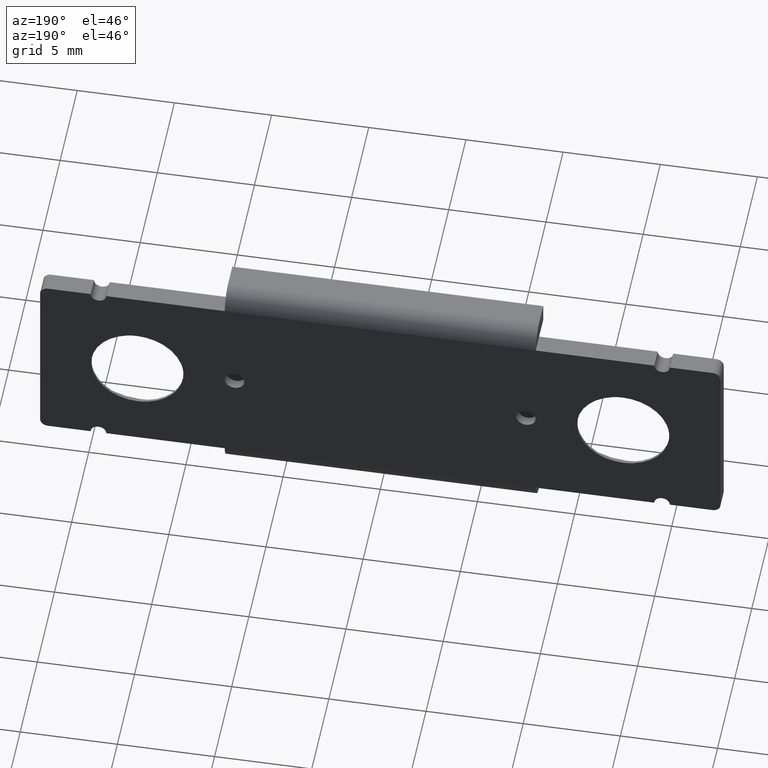
[diagram: clean part render]
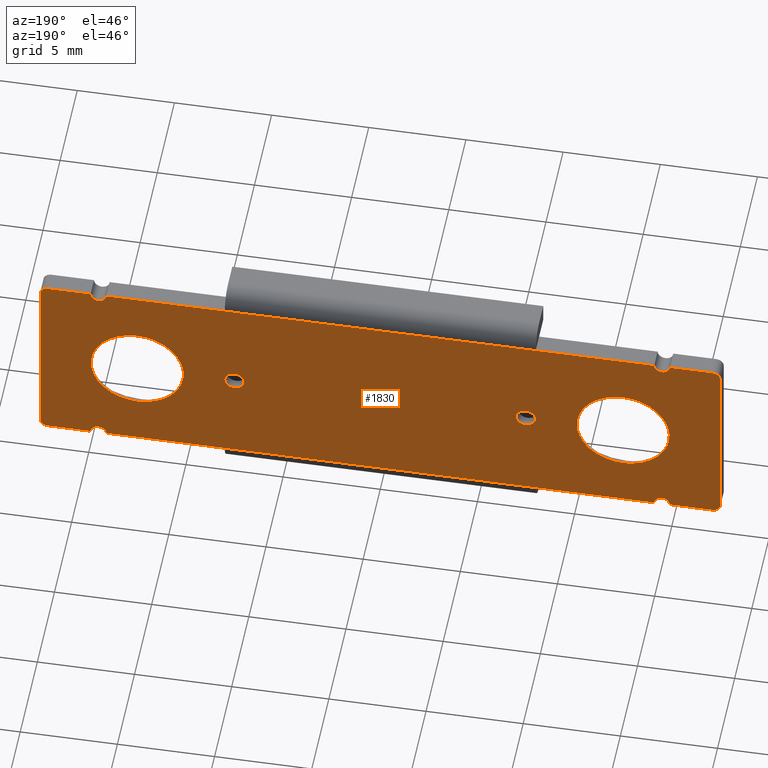
[diagram: same view with one face highlighted and labeled with its STEP entity id]
A machine part, auxiliary view. The second image highlights one B-rep face of the part: STEP entity #1830.
In plain terms, the highlighted face is a freeform B-spline surface patch.
Its self-contained STEP definition (entity closure, byte-faithful):
#311=CARTESIAN_POINT('',(14.870569646250910,-6.740051E-015,-0.144990281413068));
#312=VERTEX_POINT('',#311);
#352=CARTESIAN_POINT('',(10.129429353749209,-6.740051E-015,0.144990281413068));
#353=VERTEX_POINT('',#352);
#359=CARTESIAN_POINT('',(12.499999500000060,-6.744605E-015,2.375000000000000));
#360=VERTEX_POINT('',#359);
#361=CARTESIAN_POINT('',(12.499999500000060,-6.744605E-015,2.375000000000000));
#362=CARTESIAN_POINT('',(10.265822591115827,-6.744605E-015,2.375000000000000));
#363=CARTESIAN_POINT('',(10.129429353749215,-6.744605E-015,0.144990281413068));
#371=(BOUNDED_CURVE()B_SPLINE_CURVE(2,(#361,#362,#363),.UNSPECIFIED.,.F.,.U.)B_SPLINE_CURVE_WITH_KNOTS((3,3),(0.500000000000000,0.739332962240674),.UNSPECIFIED.)CURVE()GEOMETRIC_REPRESENTATION_ITEM()RATIONAL_B_SPLINE_CURVE((1.0,0.719603993284682,0.976072041670428))REPRESENTATION_ITEM(''));
#372=EDGE_CURVE('',#360,#353,#371,.T.);
#374=CARTESIAN_POINT('',(14.870569646250905,-6.744605E-015,-0.144990281413068));
#375=CARTESIAN_POINT('',(14.874999500000056,-6.744605E-015,-0.072562812843065));
#376=CARTESIAN_POINT('',(14.874999500000060,-6.744605E-015,0.0));
#377=CARTESIAN_POINT('',(14.874999500000063,-6.744605E-015,2.374999999999999));
#378=CARTESIAN_POINT('',(12.499999500000060,-6.744605E-015,2.375000000000000));
#386=(BOUNDED_CURVE()B_SPLINE_CURVE(2,(#374,#375,#376,#377,#378),.UNSPECIFIED.,.F.,.U.)B_SPLINE_CURVE_WITH_KNOTS((3,2,3),(0.239332962240674,0.250000000000000,0.500000000000000),.UNSPECIFIED.)CURVE()GEOMETRIC_REPRESENTATION_ITEM()RATIONAL_B_SPLINE_CURVE((0.976072041670428,0.987502787901865,1.0,0.707106781186548,1.0))REPRESENTATION_ITEM(''));
#387=EDGE_CURVE('',#312,#360,#386,.T.);
#411=CARTESIAN_POINT('',(12.499999500000060,-6.744605E-015,-2.375000000000000));
#412=VERTEX_POINT('',#411);
#413=CARTESIAN_POINT('',(12.499999500000060,-6.744605E-015,-2.375000000000000));
#414=CARTESIAN_POINT('',(14.734176408884302,-6.744605E-015,-2.375000000000000));
#415=CARTESIAN_POINT('',(14.870569646250901,-6.744605E-015,-0.144990281413067));
#423=(BOUNDED_CURVE()B_SPLINE_CURVE(2,(#413,#414,#415),.UNSPECIFIED.,.F.,.U.)B_SPLINE_CURVE_WITH_KNOTS((3,3),(0.0,0.239332962240674),.UNSPECIFIED.)CURVE()GEOMETRIC_REPRESENTATION_ITEM()RATIONAL_B_SPLINE_CURVE((1.0,0.719603993284682,0.976072041670428))REPRESENTATION_ITEM(''));
#424=EDGE_CURVE('',#412,#312,#423,.T.);
#426=CARTESIAN_POINT('',(10.129429353749215,-6.744605E-015,0.144990281413068));
#427=CARTESIAN_POINT('',(10.124999500000060,-6.744605E-015,0.072562812843065));
#428=CARTESIAN_POINT('',(10.124999500000060,-6.744605E-015,0.0));
#429=CARTESIAN_POINT('',(10.124999500000060,-6.744605E-015,-2.374999999999999));
#430=CARTESIAN_POINT('',(12.499999500000060,-6.744605E-015,-2.375000000000000));
#438=(BOUNDED_CURVE()B_SPLINE_CURVE(2,(#426,#427,#428,#429,#430),.UNSPECIFIED.,.F.,.U.)B_SPLINE_CURVE_WITH_KNOTS((3,2,3),(0.739332962240674,0.750000000000000,1.0),.UNSPECIFIED.)CURVE()GEOMETRIC_REPRESENTATION_ITEM()RATIONAL_B_SPLINE_CURVE((0.976072041670428,0.987502787901865,1.0,0.707106781186548,1.0))REPRESENTATION_ITEM(''));
#439=EDGE_CURVE('',#353,#412,#438,.T.);
#615=CARTESIAN_POINT('',(-10.129429353748980,-6.739834E-015,-0.144990281413068));
#616=VERTEX_POINT('',#615);
#656=CARTESIAN_POINT('',(-14.870569646250670,-6.739834E-015,0.144990281413068));
#657=VERTEX_POINT('',#656);
#663=CARTESIAN_POINT('',(-12.499999499999820,-6.744605E-015,2.375000000000000));
#664=VERTEX_POINT('',#663);
#665=CARTESIAN_POINT('',(-12.499999499999820,-6.744605E-015,2.375000000000000));
#666=CARTESIAN_POINT('',(-14.734176408884050,-6.744605E-015,2.375000000000000));
#667=CARTESIAN_POINT('',(-14.870569646250670,-6.744605E-015,0.144990281413068));
#675=(BOUNDED_CURVE()B_SPLINE_CURVE(2,(#665,#666,#667),.UNSPECIFIED.,.F.,.U.)B_SPLINE_CURVE_WITH_KNOTS((3,3),(0.500000000000000,0.739332962240674),.UNSPECIFIED.)CURVE()GEOMETRIC_REPRESENTATION_ITEM()RATIONAL_B_SPLINE_CURVE((1.0,0.719603993284682,0.976072041670428))REPRESENTATION_ITEM(''));
#676=EDGE_CURVE('',#664,#657,#675,.T.);
#678=CARTESIAN_POINT('',(-10.129429353748975,-6.744605E-015,-0.144990281413068));
#679=CARTESIAN_POINT('',(-10.124999499999820,-6.744605E-015,-0.072562812843065));
#680=CARTESIAN_POINT('',(-10.124999499999820,-6.744605E-015,0.0));
#681=CARTESIAN_POINT('',(-10.124999499999820,-6.744605E-015,2.374999999999999));
#682=CARTESIAN_POINT('',(-12.499999499999820,-6.744605E-015,2.375000000000000));
#690=(BOUNDED_CURVE()B_SPLINE_CURVE(2,(#678,#679,#680,#681,#682),.UNSPECIFIED.,.F.,.U.)B_SPLINE_CURVE_WITH_KNOTS((3,2,3),(0.239332962240674,0.250000000000000,0.500000000000000),.UNSPECIFIED.)CURVE()GEOMETRIC_REPRESENTATION_ITEM()RATIONAL_B_SPLINE_CURVE((0.976072041670428,0.987502787901865,1.0,0.707106781186548,1.0))REPRESENTATION_ITEM(''));
#691=EDGE_CURVE('',#616,#664,#690,.T.);
#715=CARTESIAN_POINT('',(-12.499999499999820,-6.744605E-015,-2.375000000000000));
#716=VERTEX_POINT('',#715);
#717=CARTESIAN_POINT('',(-12.499999499999820,-6.744605E-015,-2.375000000000000));
#718=CARTESIAN_POINT('',(-10.265822591115587,-6.744605E-015,-2.375000000000000));
#719=CARTESIAN_POINT('',(-10.129429353748973,-6.744605E-015,-0.144990281413068));
#727=(BOUNDED_CURVE()B_SPLINE_CURVE(2,(#717,#718,#719),.UNSPECIFIED.,.F.,.U.)B_SPLINE_CURVE_WITH_KNOTS((3,3),(0.0,0.239332962240674),.UNSPECIFIED.)CURVE()GEOMETRIC_REPRESENTATION_ITEM()RATIONAL_B_SPLINE_CURVE((1.0,0.719603993284682,0.976072041670428))REPRESENTATION_ITEM(''));
#728=EDGE_CURVE('',#716,#616,#727,.T.);
#730=CARTESIAN_POINT('',(-14.870569646250670,-6.744605E-015,0.144990281413068));
#731=CARTESIAN_POINT('',(-14.874999499999825,-6.744605E-015,0.072562812843065));
#732=CARTESIAN_POINT('',(-14.874999499999820,-6.744605E-015,0.0));
#733=CARTESIAN_POINT('',(-14.874999499999825,-6.744605E-015,-2.374999999999999));
#734=CARTESIAN_POINT('',(-12.499999499999820,-6.744605E-015,-2.375000000000000));
#742=(BOUNDED_CURVE()B_SPLINE_CURVE(2,(#730,#731,#732,#733,#734),.UNSPECIFIED.,.F.,.U.)B_SPLINE_CURVE_WITH_KNOTS((3,2,3),(0.739332962240674,0.750000000000000,1.0),.UNSPECIFIED.)CURVE()GEOMETRIC_REPRESENTATION_ITEM()RATIONAL_B_SPLINE_CURVE((0.976072041670428,0.987502787901865,1.0,0.707106781186548,1.0))REPRESENTATION_ITEM(''));
#743=EDGE_CURVE('',#657,#716,#742,.T.);
#920=CARTESIAN_POINT('',(-7.998458666841378,0.0,0.039229548183942));
#921=VERTEX_POINT('',#920);
#927=CARTESIAN_POINT('',(-7.500000000000000,0.0,0.500000000000000));
#928=VERTEX_POINT('',#927);
#929=CARTESIAN_POINT('',(-7.500000000000000,0.0,0.500000000000000));
#930=CARTESIAN_POINT('',(-7.962195245531448,0.0,0.500000000000000));
#931=CARTESIAN_POINT('',(-7.998458666841378,0.0,0.039229548183942));
#939=(BOUNDED_CURVE()B_SPLINE_CURVE(2,(#929,#930,#931),.UNSPECIFIED.,.F.,.U.)B_SPLINE_CURVE_WITH_KNOTS((3,3),(0.0,0.236331300522709),.UNSPECIFIED.)CURVE()GEOMETRIC_REPRESENTATION_ITEM()RATIONAL_B_SPLINE_CURVE((1.0,0.723120658734137,0.969723355942134))REPRESENTATION_ITEM(''));
#940=EDGE_CURVE('',#928,#921,#939,.T.);
#942=CARTESIAN_POINT('',(-7.001541333158621,0.0,-0.039229548183942));
#943=VERTEX_POINT('',#942);
#944=CARTESIAN_POINT('',(-7.001541333158622,0.0,-0.039229548183941));
#945=CARTESIAN_POINT('',(-6.999999999999999,0.0,-0.019645053664587));
#946=CARTESIAN_POINT('',(-6.999999999999999,0.0,0.0));
#947=CARTESIAN_POINT('',(-6.999999999999999,0.0,0.500000000000000));
#948=CARTESIAN_POINT('',(-7.500000000000000,0.0,0.500000000000000));
#956=(BOUNDED_CURVE()B_SPLINE_CURVE(2,(#944,#945,#946,#947,#948),.UNSPECIFIED.,.F.,.U.)B_SPLINE_CURVE_WITH_KNOTS((3,2,3),(0.736331300522709,0.750000000000000,1.0),.UNSPECIFIED.)CURVE()GEOMETRIC_REPRESENTATION_ITEM()RATIONAL_B_SPLINE_CURVE((0.969723355942134,0.983986122452410,1.0,0.707106781186548,1.0))REPRESENTATION_ITEM(''));
#957=EDGE_CURVE('',#943,#928,#956,.T.);
#989=CARTESIAN_POINT('',(-7.500000000000000,0.0,-0.500000000000000));
#990=VERTEX_POINT('',#989);
#991=CARTESIAN_POINT('',(-7.500000000000000,0.0,-0.500000000000000));
#992=CARTESIAN_POINT('',(-7.037804754468550,0.0,-0.500000000000000));
#993=CARTESIAN_POINT('',(-7.001541333158622,0.0,-0.039229548183942));
#1001=(BOUNDED_CURVE()B_SPLINE_CURVE(2,(#991,#992,#993),.UNSPECIFIED.,.F.,.U.)B_SPLINE_CURVE_WITH_KNOTS((3,3),(0.500000000000000,0.736331300522709),.UNSPECIFIED.)CURVE()GEOMETRIC_REPRESENTATION_ITEM()RATIONAL_B_SPLINE_CURVE((1.0,0.723120658734137,0.969723355942134))REPRESENTATION_ITEM(''));
#1002=EDGE_CURVE('',#990,#943,#1001,.T.);
#1004=CARTESIAN_POINT('',(-7.998458666841378,0.0,0.039229548183942));
#1005=CARTESIAN_POINT('',(-8.0,0.0,0.019645053664587));
#1006=CARTESIAN_POINT('',(-8.0,0.0,0.0));
#1007=CARTESIAN_POINT('',(-8.0,0.0,-0.500000000000000));
#1008=CARTESIAN_POINT('',(-7.500000000000000,0.0,-0.500000000000000));
#1016=(BOUNDED_CURVE()B_SPLINE_CURVE(2,(#1004,#1005,#1006,#1007,#1008),.UNSPECIFIED.,.F.,.U.)B_SPLINE_CURVE_WITH_KNOTS((3,2,3),(0.236331300522709,0.250000000000000,0.500000000000000),.UNSPECIFIED.)CURVE()GEOMETRIC_REPRESENTATION_ITEM()RATIONAL_B_SPLINE_CURVE((0.969723355942134,0.983986122452410,1.0,0.707106781186548,1.0))REPRESENTATION_ITEM(''));
#1017=EDGE_CURVE('',#921,#990,#1016,.T.);
#1042=CARTESIAN_POINT('',(7.001541833158793,0.0,0.039229548183942));
#1043=VERTEX_POINT('',#1042);
#1049=CARTESIAN_POINT('',(7.500000500000170,0.0,0.500000000000000));
#1050=VERTEX_POINT('',#1049);
#1051=CARTESIAN_POINT('',(7.500000500000170,0.0,0.500000000000000));
#1052=CARTESIAN_POINT('',(7.037805254468722,0.0,0.500000000000000));
#1053=CARTESIAN_POINT('',(7.001541833158792,0.0,0.039229548183942));
#1061=(BOUNDED_CURVE()B_SPLINE_CURVE(2,(#1051,#1052,#1053),.UNSPECIFIED.,.F.,.U.)B_SPLINE_CURVE_WITH_KNOTS((3,3),(0.0,0.236331300522709),.UNSPECIFIED.)CURVE()GEOMETRIC_REPRESENTATION_ITEM()RATIONAL_B_SPLINE_CURVE((1.0,0.723120658734137,0.969723355942134))REPRESENTATION_ITEM(''));
#1062=EDGE_CURVE('',#1050,#1043,#1061,.T.);
#1064=CARTESIAN_POINT('',(7.998459166841547,0.0,-0.039229548183942));
#1065=VERTEX_POINT('',#1064);
#1066=CARTESIAN_POINT('',(7.998459166841548,0.0,-0.039229548183941));
#1067=CARTESIAN_POINT('',(8.000000500000169,0.0,-0.019645053664587));
#1068=CARTESIAN_POINT('',(8.000000500000169,0.0,0.0));
#1069=CARTESIAN_POINT('',(8.000000500000169,0.0,0.500000000000000));
#1070=CARTESIAN_POINT('',(7.500000500000170,0.0,0.500000000000000));
#1078=(BOUNDED_CURVE()B_SPLINE_CURVE(2,(#1066,#1067,#1068,#1069,#1070),.UNSPECIFIED.,.F.,.U.)B_SPLINE_CURVE_WITH_KNOTS((3,2,3),(0.736331300522709,0.750000000000000,1.0),.UNSPECIFIED.)CURVE()GEOMETRIC_REPRESENTATION_ITEM()RATIONAL_B_SPLINE_CURVE((0.969723355942134,0.983986122452410,1.0,0.707106781186548,1.0))REPRESENTATION_ITEM(''));
#1079=EDGE_CURVE('',#1065,#1050,#1078,.T.);
#1111=CARTESIAN_POINT('',(7.500000500000170,0.0,-0.500000000000000));
#1112=VERTEX_POINT('',#1111);
#1113=CARTESIAN_POINT('',(7.500000500000170,0.0,-0.500000000000000));
#1114=CARTESIAN_POINT('',(7.962195745531617,0.0,-0.500000000000000));
#1115=CARTESIAN_POINT('',(7.998459166841548,0.0,-0.039229548183941));
#1123=(BOUNDED_CURVE()B_SPLINE_CURVE(2,(#1113,#1114,#1115),.UNSPECIFIED.,.F.,.U.)B_SPLINE_CURVE_WITH_KNOTS((3,3),(0.500000000000000,0.736331300522709),.UNSPECIFIED.)CURVE()GEOMETRIC_REPRESENTATION_ITEM()RATIONAL_B_SPLINE_CURVE((1.0,0.723120658734137,0.969723355942134))REPRESENTATION_ITEM(''));
#1124=EDGE_CURVE('',#1112,#1065,#1123,.T.);
#1126=CARTESIAN_POINT('',(7.001541833158792,0.0,0.039229548183942));
#1127=CARTESIAN_POINT('',(7.000000500000170,0.0,0.019645053664587));
#1128=CARTESIAN_POINT('',(7.000000500000171,0.0,0.0));
#1129=CARTESIAN_POINT('',(7.000000500000172,0.0,-0.500000000000000));
#1130=CARTESIAN_POINT('',(7.500000500000170,0.0,-0.500000000000000));
#1138=(BOUNDED_CURVE()B_SPLINE_CURVE(2,(#1126,#1127,#1128,#1129,#1130),.UNSPECIFIED.,.F.,.U.)B_SPLINE_CURVE_WITH_KNOTS((3,2,3),(0.236331300522709,0.250000000000000,0.500000000000000),.UNSPECIFIED.)CURVE()GEOMETRIC_REPRESENTATION_ITEM()RATIONAL_B_SPLINE_CURVE((0.969723355942134,0.983986122452410,1.0,0.707106781186548,1.0))REPRESENTATION_ITEM(''));
#1139=EDGE_CURVE('',#1043,#1112,#1138,.T.);
#1467=CARTESIAN_POINT('',(-8.0,-1.421085E-014,5.000000500000170));
#1468=VERTEX_POINT('',#1467);
#1483=CARTESIAN_POINT('',(8.0,0.0,5.0));
#1484=VERTEX_POINT('',#1483);
#1498=CARTESIAN_POINT('',(8.0,0.0,5.0));
#1499=CARTESIAN_POINT('',(-8.0,-1.421085E-014,5.000000500000170));
#1500=QUASI_UNIFORM_CURVE('',1,(#1498,#1499),.UNSPECIFIED.,.F.,.U.);
#1501=EDGE_CURVE('',#1484,#1468,#1500,.T.);
#1556=CARTESIAN_POINT('',(-8.0,0.0,-5.0));
#1557=VERTEX_POINT('',#1556);
#1571=CARTESIAN_POINT('',(8.0,1.421085E-014,-4.999999500000100));
#1572=VERTEX_POINT('',#1571);
#1573=CARTESIAN_POINT('',(8.0,1.421085E-014,-4.999999500000100));
#1574=CARTESIAN_POINT('',(-8.0,0.0,-5.0));
#1575=QUASI_UNIFORM_CURVE('',1,(#1573,#1574),.UNSPECIFIED.,.F.,.U.);
#1576=EDGE_CURVE('',#1572,#1557,#1575,.T.);
#1595=CARTESIAN_POINT('',(-19.248249382213210,-1.421085E-014,5.499500505593242));
#1596=CARTESIAN_POINT('',(19.248250320986450,-1.421085E-014,5.499500505593241));
#1597=CARTESIAN_POINT('',(-19.248249382213210,-1.421085E-014,-5.499500273814098));
#1598=CARTESIAN_POINT('',(19.248250320986450,-1.421085E-014,-5.499500273814098));
#1599=B_SPLINE_SURFACE_WITH_KNOTS('',1,1,((#1595,#1597),(#1596,#1598)),.UNSPECIFIED.,.F.,.F.,.U.,(2,2),(2,2),(0.0,38.496499703199660),(0.0,10.999000779407339),.UNSPECIFIED.);
#1600=CARTESIAN_POINT('',(14.099999499999861,0.0,5.0));
#1601=VERTEX_POINT('',#1600);
#1602=CARTESIAN_POINT('',(14.099999499999861,0.0,5.0));
#1603=CARTESIAN_POINT('',(8.0,0.0,5.0));
#1604=QUASI_UNIFORM_CURVE('',1,(#1602,#1603),.UNSPECIFIED.,.F.,.U.);
#1605=EDGE_CURVE('',#1601,#1484,#1604,.T.);
#1606=ORIENTED_EDGE('',*,*,#1605,.F.);
#1607=CARTESIAN_POINT('',(14.899999499999920,0.0,5.0));
#1608=VERTEX_POINT('',#1607);
#1609=CARTESIAN_POINT('',(14.099999499999861,0.0,5.0));
#1610=CARTESIAN_POINT('',(14.099939393816101,0.0,4.947631807180057));
#1611=CARTESIAN_POINT('',(14.117611607458651,0.0,4.859322743692579));
#1612=CARTESIAN_POINT('',(14.175817948517601,0.0,4.759462019738032));
#1613=CARTESIAN_POINT('',(14.246116601412620,0.0,4.685623993323814));
#1614=CARTESIAN_POINT('',(14.321572554918941,0.0,4.637842610073420));
#1615=CARTESIAN_POINT('',(14.414752941711260,0.0,4.605791660926644));
#1616=CARTESIAN_POINT('',(14.500079496271541,0.0,4.596329011508641));
#1617=CARTESIAN_POINT('',(14.591452727124260,0.0,4.607609660910407));
#1618=CARTESIAN_POINT('',(14.694240170002381,0.0,4.642901467320531));
#1619=CARTESIAN_POINT('',(14.790679610343741,0.0,4.714449007083669));
#1620=CARTESIAN_POINT('',(14.876616378848521,0.0,4.839751468106184));
#1621=CARTESIAN_POINT('',(14.900116686214760,0.0,4.937795363090896));
#1622=CARTESIAN_POINT('',(14.899999499999920,0.0,5.0));
#1623=B_SPLINE_CURVE_WITH_KNOTS('',3,(#1609,#1610,#1611,#1612,#1613,#1614,#1615,#1616,#1617,#1618,#1619,#1620,#1621,#1622),.UNSPECIFIED.,.F.,.U.,(4,1,1,1,1,1,1,1,1,1,1,4),(0.000000234966585,0.157077718809714,0.265079467355936,0.343622215354618,0.461448521991783,0.530163254182586,0.638132723179150,0.716684238127753,0.805049432190502,0.962138509480123,1.070135601583565,1.256668595682362),.UNSPECIFIED.);
#1624=EDGE_CURVE('',#1601,#1608,#1623,.T.);
#1625=ORIENTED_EDGE('',*,*,#1624,.T.);
#1626=CARTESIAN_POINT('',(17.099999500000202,0.0,5.0));
#1627=VERTEX_POINT('',#1626);
#1628=CARTESIAN_POINT('',(17.099999500000202,0.0,5.0));
#1629=CARTESIAN_POINT('',(14.899999499999920,0.0,5.0));
#1630=QUASI_UNIFORM_CURVE('',1,(#1628,#1629),.UNSPECIFIED.,.F.,.U.);
#1631=EDGE_CURVE('',#1627,#1608,#1630,.T.);
#1632=ORIENTED_EDGE('',*,*,#1631,.F.);
#1633=CARTESIAN_POINT('',(17.499999500000101,0.0,4.600000000000000));
#1634=VERTEX_POINT('',#1633);
#1635=CARTESIAN_POINT('',(17.499999500000101,0.0,4.600000000000000));
#1636=CARTESIAN_POINT('',(17.499999500000186,0.0,4.999999999999979));
#1637=CARTESIAN_POINT('',(17.099999500000202,0.0,4.999999999999978));
#1645=(BOUNDED_CURVE()B_SPLINE_CURVE(2,(#1635,#1636,#1637),.UNSPECIFIED.,.F.,.U.)CURVE()GEOMETRIC_REPRESENTATION_ITEM()QUASI_UNIFORM_CURVE()RATIONAL_B_SPLINE_CURVE((1.0,0.707106781186547,1.0))REPRESENTATION_ITEM(''));
#1646=EDGE_CURVE('',#1634,#1627,#1645,.T.);
#1647=ORIENTED_EDGE('',*,*,#1646,.F.);
#1648=CARTESIAN_POINT('',(17.499999500000101,0.0,-4.600000000000080));
#1649=VERTEX_POINT('',#1648);
#1650=CARTESIAN_POINT('',(17.499999500000101,0.0,-4.600000000000080));
#1651=CARTESIAN_POINT('',(17.499999500000101,0.0,4.600000000000000));
#1652=QUASI_UNIFORM_CURVE('',1,(#1650,#1651),.UNSPECIFIED.,.F.,.U.);
#1653=EDGE_CURVE('',#1649,#1634,#1652,.T.);
#1654=ORIENTED_EDGE('',*,*,#1653,.F.);
#1655=CARTESIAN_POINT('',(17.099999500000202,0.0,-5.0));
#1656=VERTEX_POINT('',#1655);
#1657=CARTESIAN_POINT('',(17.099999500000202,0.0,-5.0));
#1658=CARTESIAN_POINT('',(17.499999500000126,0.0,-4.999999999999999));
#1659=CARTESIAN_POINT('',(17.499999500000119,0.0,-4.600000000000080));
#1667=(BOUNDED_CURVE()B_SPLINE_CURVE(2,(#1657,#1658,#1659),.UNSPECIFIED.,.F.,.U.)CURVE()GEOMETRIC_REPRESENTATION_ITEM()QUASI_UNIFORM_CURVE()RATIONAL_B_SPLINE_CURVE((1.0,0.707106781186547,1.0))REPRESENTATION_ITEM(''));
#1668=EDGE_CURVE('',#1656,#1649,#1667,.T.);
#1669=ORIENTED_EDGE('',*,*,#1668,.F.);
#1670=CARTESIAN_POINT('',(14.899999499999799,0.0,-5.0));
#1671=VERTEX_POINT('',#1670);
#1672=CARTESIAN_POINT('',(14.899999499999799,0.0,-5.0));
#1673=CARTESIAN_POINT('',(17.099999500000202,0.0,-5.0));
#1674=QUASI_UNIFORM_CURVE('',1,(#1672,#1673),.UNSPECIFIED.,.F.,.U.);
#1675=EDGE_CURVE('',#1671,#1656,#1674,.T.);
#1676=ORIENTED_EDGE('',*,*,#1675,.F.);
#1677=CARTESIAN_POINT('',(14.099999499999740,0.0,-5.0));
#1678=VERTEX_POINT('',#1677);
#1679=CARTESIAN_POINT('',(14.899999499999799,0.0,-5.0));
#1680=CARTESIAN_POINT('',(14.900043862666910,0.0,-4.950910287568547));
#1681=CARTESIAN_POINT('',(14.885352538825700,0.0,-4.872406669983277));
#1682=CARTESIAN_POINT('',(14.835305814616270,0.0,-4.775961304120926));
#1683=CARTESIAN_POINT('',(14.775950340700669,0.0,-4.705411962387082));
#1684=CARTESIAN_POINT('',(14.704440895763179,0.0,-4.652381937343876));
#1685=CARTESIAN_POINT('',(14.620262250586681,0.0,-4.615070375520523));
#1686=CARTESIAN_POINT('',(14.523252302649871,0.0,-4.595763977684816));
#1687=CARTESIAN_POINT('',(14.407782290628941,0.0,-4.604266452009724));
#1688=CARTESIAN_POINT('',(14.300079332634620,0.0,-4.647345866031127));
#1689=CARTESIAN_POINT('',(14.219503687108160,0.0,-4.710247701912979));
#1690=CARTESIAN_POINT('',(14.163177432911191,0.0,-4.778886871742651));
#1691=CARTESIAN_POINT('',(14.114642768292210,0.0,-4.872406974357335));
#1692=CARTESIAN_POINT('',(14.099958238043831,0.0,-4.950910966495162));
#1693=CARTESIAN_POINT('',(14.099999499999740,0.0,-5.0));
#1694=B_SPLINE_CURVE_WITH_KNOTS('',3,(#1679,#1680,#1681,#1682,#1683,#1684,#1685,#1686,#1687,#1688,#1689,#1690,#1691,#1692,#1693),.UNSPECIFIED.,.F.,.U.,(4,1,1,1,1,1,1,1,1,1,1,1,4),(0.000000234969537,0.147250106099540,0.235623184620121,0.323986844793908,0.422165795035527,0.500710799373175,0.598893493965211,0.716684238128362,0.844315674425927,0.942502418488307,1.021050145044977,1.109418291883568,1.256668595682363),.UNSPECIFIED.);
#1695=EDGE_CURVE('',#1671,#1678,#1694,.T.);
#1696=ORIENTED_EDGE('',*,*,#1695,.T.);
#1697=CARTESIAN_POINT('',(8.0,1.421085E-014,-4.999999500000100));
#1698=CARTESIAN_POINT('',(14.099999499999740,0.0,-5.0));
#1699=QUASI_UNIFORM_CURVE('',1,(#1697,#1698),.UNSPECIFIED.,.F.,.U.);
#1700=EDGE_CURVE('',#1572,#1678,#1699,.T.);
#1701=ORIENTED_EDGE('',*,*,#1700,.F.);
#1702=ORIENTED_EDGE('',*,*,#1576,.T.);
#1703=CARTESIAN_POINT('',(-14.099999499999740,0.0,-5.0));
#1704=VERTEX_POINT('',#1703);
#1705=CARTESIAN_POINT('',(-14.099999499999740,0.0,-5.0));
#1706=CARTESIAN_POINT('',(-8.0,0.0,-5.0));
#1707=QUASI_UNIFORM_CURVE('',1,(#1705,#1706),.UNSPECIFIED.,.F.,.U.);
#1708=EDGE_CURVE('',#1704,#1557,#1707,.T.);
#1709=ORIENTED_EDGE('',*,*,#1708,.F.);
#1710=CARTESIAN_POINT('',(-14.899999499999920,0.0,-5.0));
#1711=VERTEX_POINT('',#1710);
#1712=CARTESIAN_POINT('',(-14.099999499999740,0.0,-5.0));
#1713=CARTESIAN_POINT('',(-14.099954192727420,0.0,-4.950910900460070));
#1714=CARTESIAN_POINT('',(-14.114649088957719,0.0,-4.872407869350371));
#1715=CARTESIAN_POINT('',(-14.172258932815391,0.0,-4.761333003173871));
#1716=CARTESIAN_POINT('',(-14.250116173672270,0.0,-4.679552950005165));
#1717=CARTESIAN_POINT('',(-14.368742975751260,0.0,-4.614248165955810));
#1718=CARTESIAN_POINT('',(-14.500198127186939,0.0,-4.591420081613774));
#1719=CARTESIAN_POINT('',(-14.620747682395169,0.0,-4.613912254658010));
#1720=CARTESIAN_POINT('',(-14.721834575940679,0.0,-4.661710547800004));
#1721=CARTESIAN_POINT('',(-14.810617872715470,0.0,-4.736383505680504));
#1722=CARTESIAN_POINT('',(-14.882312451478111,0.0,-4.856042345713568));
#1723=CARTESIAN_POINT('',(-14.900041982842460,0.0,-4.950911219216021));
#1724=CARTESIAN_POINT('',(-14.899999499999920,0.0,-5.0));
#1725=B_SPLINE_CURVE_WITH_KNOTS('',3,(#1712,#1713,#1714,#1715,#1716,#1717,#1718,#1719,#1720,#1721,#1722,#1723,#1724),.UNSPECIFIED.,.F.,.U.,(4,1,1,1,1,1,1,1,1,1,4),(0.000000234965693,0.147250106096589,0.235623184617676,0.373078323452026,0.481080620290029,0.638132723179804,0.765767176693371,0.844315674426150,0.971958488066293,1.109418291883928,1.256668595682720),.UNSPECIFIED.);
#1726=EDGE_CURVE('',#1704,#1711,#1725,.T.);
#1727=ORIENTED_EDGE('',*,*,#1726,.T.);
#1728=CARTESIAN_POINT('',(-17.099999499999999,0.0,-5.000000000000110));
#1729=VERTEX_POINT('',#1728);
#1730=CARTESIAN_POINT('',(-17.099999499999999,0.0,-5.000000000000110));
#1731=CARTESIAN_POINT('',(-14.899999499999920,0.0,-5.0));
#1732=QUASI_UNIFORM_CURVE('',1,(#1730,#1731),.UNSPECIFIED.,.F.,.U.);
#1733=EDGE_CURVE('',#1729,#1711,#1732,.T.);
#1734=ORIENTED_EDGE('',*,*,#1733,.F.);
#1735=CARTESIAN_POINT('',(-17.499999499999848,0.0,-4.600000000000080));
#1736=VERTEX_POINT('',#1735);
#1737=CARTESIAN_POINT('',(-17.499999499999848,0.0,-4.600000000000080));
#1738=CARTESIAN_POINT('',(-17.499999500000040,0.0,-5.000000000000115));
#1739=CARTESIAN_POINT('',(-17.099999499999999,0.0,-5.000000000000114));
#1747=(BOUNDED_CURVE()B_SPLINE_CURVE(2,(#1737,#1738,#1739),.UNSPECIFIED.,.F.,.U.)CURVE()GEOMETRIC_REPRESENTATION_ITEM()QUASI_UNIFORM_CURVE()RATIONAL_B_SPLINE_CURVE((1.0,0.707106781186547,1.0))REPRESENTATION_ITEM(''));
#1748=EDGE_CURVE('',#1736,#1729,#1747,.T.);
#1749=ORIENTED_EDGE('',*,*,#1748,.F.);
#1750=CARTESIAN_POINT('',(-17.499999500000001,0.0,4.600000000000000));
#1751=VERTEX_POINT('',#1750);
#1752=CARTESIAN_POINT('',(-17.499999500000001,0.0,4.600000000000000));
#1753=CARTESIAN_POINT('',(-17.499999499999848,0.0,-4.600000000000080));
#1754=QUASI_UNIFORM_CURVE('',1,(#1752,#1753),.UNSPECIFIED.,.F.,.U.);
#1755=EDGE_CURVE('',#1751,#1736,#1754,.T.);
#1756=ORIENTED_EDGE('',*,*,#1755,.F.);
#1757=CARTESIAN_POINT('',(-17.099999499999999,0.0,5.0));
#1758=VERTEX_POINT('',#1757);
#1759=CARTESIAN_POINT('',(-17.099999499999999,0.0,5.000000000000034));
#1760=CARTESIAN_POINT('',(-17.499999500000040,0.0,5.000000000000033));
#1761=CARTESIAN_POINT('',(-17.499999500000040,0.0,4.600000000000000));
#1769=(BOUNDED_CURVE()B_SPLINE_CURVE(2,(#1759,#1760,#1761),.UNSPECIFIED.,.F.,.U.)CURVE()GEOMETRIC_REPRESENTATION_ITEM()QUASI_UNIFORM_CURVE()RATIONAL_B_SPLINE_CURVE((1.0,0.707106781186547,1.0))REPRESENTATION_ITEM(''));
#1770=EDGE_CURVE('',#1758,#1751,#1769,.T.);
#1771=ORIENTED_EDGE('',*,*,#1770,.F.);
#1772=CARTESIAN_POINT('',(-14.899999499999799,0.0,5.0));
#1773=VERTEX_POINT('',#1772);
#1774=CARTESIAN_POINT('',(-14.899999499999799,0.0,5.0));
#1775=CARTESIAN_POINT('',(-17.099999499999999,0.0,5.0));
#1776=QUASI_UNIFORM_CURVE('',1,(#1774,#1775),.UNSPECIFIED.,.F.,.U.);
#1777=EDGE_CURVE('',#1773,#1758,#1776,.T.);
#1778=ORIENTED_EDGE('',*,*,#1777,.F.);
#1779=CARTESIAN_POINT('',(-14.099999499999861,0.0,5.0));
#1780=VERTEX_POINT('',#1779);
#1781=CARTESIAN_POINT('',(-14.899999499999799,0.0,5.0));
#1782=CARTESIAN_POINT('',(-14.900008034577450,0.0,4.964003334600077));
#1783=CARTESIAN_POINT('',(-14.889337092380710,0.0,4.885463875384861));
#1784=CARTESIAN_POINT('',(-14.843801893285550,0.0,4.786027694491748));
#1785=CARTESIAN_POINT('',(-14.767472814783590,0.0,4.695321534973623));
#1786=CARTESIAN_POINT('',(-14.670834011536030,0.0,4.630726351885305));
#1787=CARTESIAN_POINT('',(-14.562419457778020,0.0,4.600765113819461));
#1788=CARTESIAN_POINT('',(-14.460520537655530,0.0,4.598264427384658));
#1789=CARTESIAN_POINT('',(-14.370068939455740,0.0,4.617411708485749));
#1790=CARTESIAN_POINT('',(-14.269445404184649,0.0,4.666500957269784));
#1791=CARTESIAN_POINT('',(-14.190706376628240,0.0,4.737867417667527));
#1792=CARTESIAN_POINT('',(-14.119878179085140,0.0,4.852817088069310));
#1793=CARTESIAN_POINT('',(-14.099919337310590,0.0,4.941080116313516));
#1794=CARTESIAN_POINT('',(-14.099999499999861,0.0,5.0));
#1795=B_SPLINE_CURVE_WITH_KNOTS('',3,(#1781,#1782,#1783,#1784,#1785,#1786,#1787,#1788,#1789,#1790,#1791,#1792,#1793,#1794),.UNSPECIFIED.,.F.,.U.,(4,1,1,1,1,1,1,1,1,1,1,4),(0.000000234968279,0.107993156967000,0.235623184619043,0.323986844792927,0.461448521992440,0.579268636988959,0.657779594537665,0.765767176692963,0.854142317208951,0.991593883489611,1.079962662050390,1.256668595682362),.UNSPECIFIED.);
#1796=EDGE_CURVE('',#1773,#1780,#1795,.T.);
#1797=ORIENTED_EDGE('',*,*,#1796,.T.);
#1798=CARTESIAN_POINT('',(-8.0,-1.421085E-014,5.000000500000170));
#1799=CARTESIAN_POINT('',(-14.099999499999861,0.0,5.0));
#1800=QUASI_UNIFORM_CURVE('',1,(#1798,#1799),.UNSPECIFIED.,.F.,.U.);
#1801=EDGE_CURVE('',#1468,#1780,#1800,.T.);
#1802=ORIENTED_EDGE('',*,*,#1801,.F.);
#1803=ORIENTED_EDGE('',*,*,#1501,.F.);
#1804=EDGE_LOOP('',(#1606,#1625,#1632,#1647,#1654,#1669,#1676,#1696,#1701,#1702,#1709,#1727,#1734,#1749,#1756,#1771,#1778,#1797,#1802,#1803));
#1805=FACE_OUTER_BOUND('',#1804,.T.);
#1806=ORIENTED_EDGE('',*,*,#1124,.T.);
#1807=ORIENTED_EDGE('',*,*,#1079,.T.);
#1808=ORIENTED_EDGE('',*,*,#1062,.T.);
#1809=ORIENTED_EDGE('',*,*,#1139,.T.);
#1810=EDGE_LOOP('',(#1806,#1807,#1808,#1809));
#1811=FACE_BOUND('',#1810,.T.);
#1812=ORIENTED_EDGE('',*,*,#1002,.T.);
#1813=ORIENTED_EDGE('',*,*,#957,.T.);
#1814=ORIENTED_EDGE('',*,*,#940,.T.);
#1815=ORIENTED_EDGE('',*,*,#1017,.T.);
#1816=EDGE_LOOP('',(#1812,#1813,#1814,#1815));
#1817=FACE_BOUND('',#1816,.T.);
#1818=ORIENTED_EDGE('',*,*,#676,.T.);
#1819=ORIENTED_EDGE('',*,*,#743,.T.);
#1820=ORIENTED_EDGE('',*,*,#728,.T.);
#1821=ORIENTED_EDGE('',*,*,#691,.T.);
#1822=EDGE_LOOP('',(#1818,#1819,#1820,#1821));
#1823=FACE_BOUND('',#1822,.T.);
#1824=ORIENTED_EDGE('',*,*,#372,.T.);
#1825=ORIENTED_EDGE('',*,*,#439,.T.);
#1826=ORIENTED_EDGE('',*,*,#424,.T.);
#1827=ORIENTED_EDGE('',*,*,#387,.T.);
#1828=EDGE_LOOP('',(#1824,#1825,#1826,#1827));
#1829=FACE_BOUND('',#1828,.T.);
#1830=ADVANCED_FACE('',(#1805,#1811,#1817,#1823,#1829),#1599,.T.);